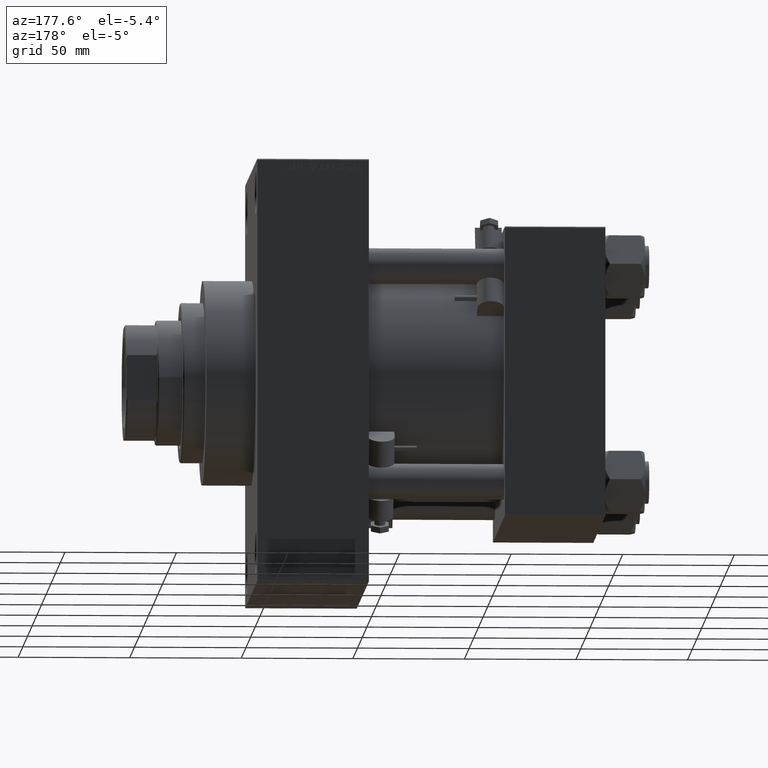
[diagram: clean part render]
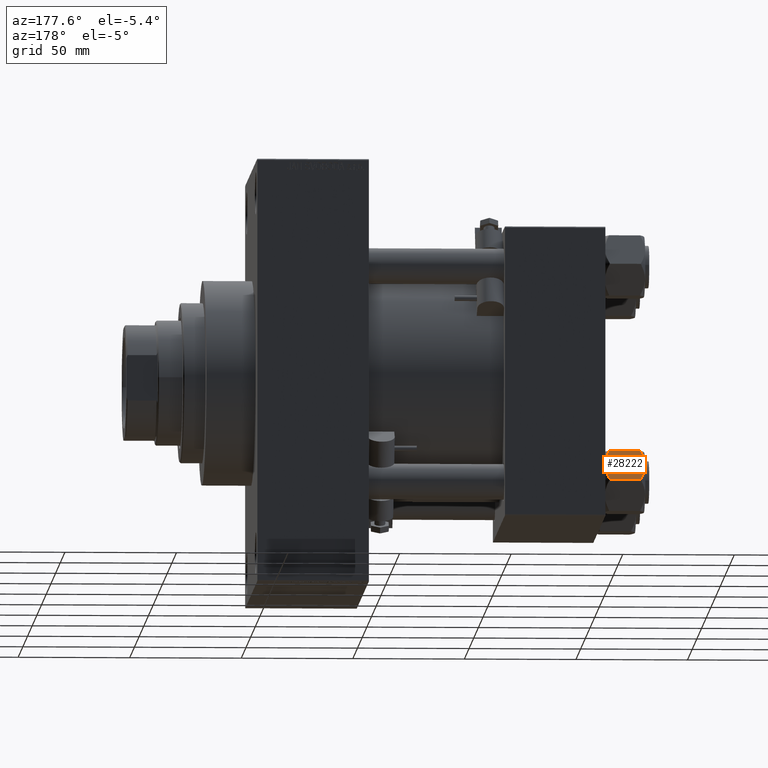
[diagram: same view with one face highlighted and labeled with its STEP entity id]
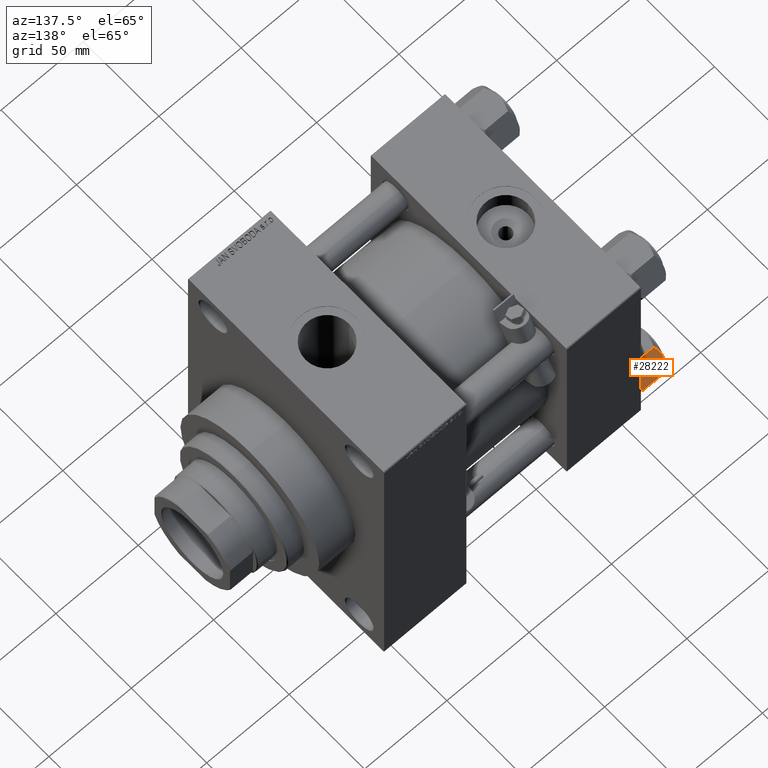
[diagram: same view with one face highlighted and labeled with its STEP entity id]
A machine part, auxiliary view. The second image highlights one B-rep face of the part: STEP entity #28222.
A second angle (auxiliary view) of the same face is appended — the face is thin or edge-on in the first view.
In plain terms, the highlighted planar face has unit normal (0, -0.866, -0.5).
Its self-contained STEP definition (entity closure, byte-faithful):
#175 = CARTESIAN_POINT ( 'NONE',  ( -9.114548888011780647, 11.26777185211904353, -0.9142282604026925608 ) ) ;
#828 = DIRECTION ( 'NONE',  ( 0.4999999999999999445, 0.8660254037844387076, 0.000000000000000000 ) ) ;
#1852 = CARTESIAN_POINT ( 'NONE',  ( -9.124083218049239719, 11.25125790807804194, -17.05261278537718539 ) ) ;
#2490 = ORIENTED_EDGE ( 'NONE', *, *, #4629, .F. ) ;
#3654 = AXIS2_PLACEMENT_3D ( 'NONE', #7027, #26036, #13679 ) ;
#4250 = ORIENTED_EDGE ( 'NONE', *, *, #25191, .F. ) ;
#4436 = VECTOR ( 'NONE', #4820, 999.9999999999998863 ) ;
#4629 = EDGE_CURVE ( 'NONE', #31877, #47916, #45055, .T. ) ;
#4820 = DIRECTION ( 'NONE',  ( 0.4999999999999999445, 0.8660254037844387076, 0.000000000000000000 ) ) ;
#5443 = CARTESIAN_POINT ( 'NONE',  ( -11.71500000000000341, 6.763658403556467746, 0.000000000000000000 ) ) ;
#6049 = CARTESIAN_POINT ( 'NONE',  ( -8.506059550806615022, 12.32170630002230638, -16.56553707812499354 ) ) ;
#6200 = VERTEX_POINT ( 'NONE', #5443 ) ;
#6251 = CARTESIAN_POINT ( 'NONE',  ( -12.38621571200405569, 5.601078687526927169, -17.94910618364698252 ) ) ;
#6509 = EDGE_CURVE ( 'NONE', #31825, #12220, #22741, .T. ) ;
#7013 = CARTESIAN_POINT ( 'NONE',  ( -7.809999999999996945, 13.52731680711293727, -18.00000000000000000 ) ) ;
#7027 = CARTESIAN_POINT ( 'NONE',  ( -15.61999999999999567, 8.023367828467702033E-15, -18.00000000000000000 ) ) ;
#7750 = LINE ( 'NONE', #7013, #19345 ) ;
#8288 = LINE ( 'NONE', #27290, #4436 ) ;
#8378 = EDGE_CURVE ( 'NONE', #21920, #26774, #28307, .T. ) ;
#9669 = CARTESIAN_POINT ( 'NONE',  ( -15.61999999999999567, 8.023367828467702033E-15, -18.00000000000000000 ) ) ;
#10920 = ORIENTED_EDGE ( 'NONE', *, *, #17829, .F. ) ;
#10927 = CARTESIAN_POINT ( 'NONE',  ( -13.02784502466562522, 4.489744118371585380, -0.1971866459924509485 ) ) ;
#10982 = FACE_OUTER_BOUND ( 'NONE', #18474, .T. ) ;
#11678 = CARTESIAN_POINT ( 'NONE',  ( -7.903528262322672582, 13.36532110482643354, -2.000000000000000000 ) ) ;
#11916 = ORIENTED_EDGE ( 'NONE', *, *, #23306, .F. ) ;
#12220 = VERTEX_POINT ( 'NONE', #41062 ) ;
#12952 = CARTESIAN_POINT ( 'NONE',  ( -11.05297796109637787, 7.910314210667880985, -18.00000000000000355 ) ) ;
#13206 = CARTESIAN_POINT ( 'NONE',  ( -15.52647173767732802, 0.1619957022864961793, -2.000000000000000000 ) ) ;
#13679 = DIRECTION ( 'NONE',  ( 0.4999999999999998890, 0.8660254037844385966, 0.000000000000000000 ) ) ;
#13828 = CARTESIAN_POINT ( 'NONE',  ( -15.61999999999999567, 8.023367828467702033E-15, -1.999999999999998224 ) ) ;
#15112 = CARTESIAN_POINT ( 'NONE',  ( -13.99051971937273997, 2.822342635978005276, -0.7317196846281108780 ) ) ;
#15233 = CARTESIAN_POINT ( 'NONE',  ( -10.06459418565412278, 9.622245127110613083, -0.3836066851120565890 ) ) ;
#15950 = EDGE_CURVE ( 'NONE', #19154, #33174, #26516, .T. ) ;
#16090 = VECTOR ( 'NONE', #43370, 999.9999999999998863 ) ;
#17770 = VECTOR ( 'NONE', #28434, 1000.000000000000000 ) ;
#17829 = EDGE_CURVE ( 'NONE', #47916, #6200, #37830, .T. ) ;
#18134 = PLANE ( 'NONE',  #3654 ) ;
#18474 = EDGE_LOOP ( 'NONE', ( #32723, #33733, #39944, #48410, #10920, #2490, #40281, #11916, #19404, #4250 ) ) ;
#19154 = VERTEX_POINT ( 'NONE', #33288 ) ;
#19181 = CARTESIAN_POINT ( 'NONE',  ( -11.04378428799594758, 7.926238119586002995, -0.05089381635301037932 ) ) ;
#19345 = VECTOR ( 'NONE', #22554, 1000.000000000000000 ) ;
#19404 = ORIENTED_EDGE ( 'NONE', *, *, #6509, .F. ) ;
#19429 = CARTESIAN_POINT ( 'NONE',  ( -11.38181071908714515, 7.340759166634869715, 4.331726492258492723E-15 ) ) ;
#19569 = VECTOR ( 'NONE', #43235, 999.9999999999998863 ) ;
#21102 = CARTESIAN_POINT ( 'NONE',  ( -8.202637790192643052, 12.84724820552771263, -16.29368822085855584 ) ) ;
#21145 = CARTESIAN_POINT ( 'NONE',  ( -15.61999999999999567, 8.023367828467702033E-15, -1.999999999999998224 ) ) ;
#21203 = CARTESIAN_POINT ( 'NONE',  ( -15.61999999999999567, 8.023367828467702033E-15, -1.999999999999998224 ) ) ;
#21299 = CARTESIAN_POINT ( 'NONE',  ( -12.04818928091285457, 6.186557640478063114, -18.00000000000000711 ) ) ;
#21920 = VERTEX_POINT ( 'NONE', #13206 ) ;
#22095 = VERTEX_POINT ( 'NONE', #40709 ) ;
#22290 = CARTESIAN_POINT ( 'NONE',  ( -11.71500000000000341, 6.763658403556467746, -18.00000000000000000 ) ) ;
#22554 = DIRECTION ( 'NONE',  ( -0.000000000000000000, -0.000000000000000000, 1.000000000000000000 ) ) ;
#22741 = B_SPLINE_CURVE_WITH_KNOTS ( 'NONE', 3,
 ( #31963, #12952, #39866, #28019, #1852, #6049, #21102, #43331 ),
 .UNSPECIFIED., .F., .F.,
 ( 4, 2, 2, 4 ),
 ( 0.007890825462474436100, 0.01181022244528555365, 0.01376992093669111156, 0.01572961942809666946 ),
 .UNSPECIFIED. ) ;
#23306 = EDGE_CURVE ( 'NONE', #12220, #22095, #8288, .T. ) ;
#25001 = CARTESIAN_POINT ( 'NONE',  ( -15.52647173767732802, 0.1619957022864961793, -16.00000000000000000 ) ) ;
#25191 = EDGE_CURVE ( 'NONE', #33174, #31825, #26777, .T. ) ;
#25475 = CARTESIAN_POINT ( 'NONE',  ( -14.30591678195076177, 2.276058899034892224, -0.9473872146228117241 ) ) ;
#26022 = CARTESIAN_POINT ( 'NONE',  ( -15.61999999999999567, 8.023367828467702033E-15, -16.00000000000000000 ) ) ;
#26036 = DIRECTION ( 'NONE',  ( 0.8660254037844387076, -0.4999999999999999445, 0.000000000000000000 ) ) ;
#26516 = LINE ( 'NONE', #26022, #31675 ) ;
#26774 = VERTEX_POINT ( 'NONE', #21203 ) ;
#26777 = B_SPLINE_CURVE_WITH_KNOTS ( 'NONE', 3,
 ( #25001, #40068, #44756, #36110, #28699, #6251, #21299, #36338 ),
 .UNSPECIFIED., .F., .F.,
 ( 4, 2, 2, 4 ),
 ( 4.472842641907744530E-07, 0.003945636373369311792, 0.005918230917921873946, 0.007890825462474436100 ),
 .UNSPECIFIED. ) ;
#27290 = CARTESIAN_POINT ( 'NONE',  ( -15.61999999999999567, 8.023367828467702033E-15, -16.00000000000000000 ) ) ;
#28019 = CARTESIAN_POINT ( 'NONE',  ( -9.439480280627259745, 10.70497417113493022, -17.26828031537189290 ) ) ;
#28222 = ADVANCED_FACE ( 'NONE', ( #10982 ), #18134, .F. ) ;
#28307 = LINE ( 'NONE', #21145, #16090 ) ;
#28434 = DIRECTION ( 'NONE',  ( -0.000000000000000000, -0.000000000000000000, 1.000000000000000000 ) ) ;
#28699 = CARTESIAN_POINT ( 'NONE',  ( -13.04337073483128329, 4.462852799541079385, -17.75691532989870325 ) ) ;
#30044 = CARTESIAN_POINT ( 'NONE',  ( -7.903528262322672582, 13.36532110482643354, -2.000000000000000000 ) ) ;
#30287 = CARTESIAN_POINT ( 'NONE',  ( -10.38662926516871998, 9.064464007571849891, -0.2430846701012936983 ) ) ;
#31013 = CARTESIAN_POINT ( 'NONE',  ( -11.71500000000000341, 6.763658403556467746, 0.000000000000000000 ) ) ;
#31675 = VECTOR ( 'NONE', #828, 999.9999999999998863 ) ;
#31825 = VERTEX_POINT ( 'NONE', #22290 ) ;
#31877 = VERTEX_POINT ( 'NONE', #45748 ) ;
#31963 = CARTESIAN_POINT ( 'NONE',  ( -11.71500000000000341, 6.763658403556467746, -18.00000000000000000 ) ) ;
#32723 = ORIENTED_EDGE ( 'NONE', *, *, #15950, .F. ) ;
#33174 = VERTEX_POINT ( 'NONE', #37791 ) ;
#33288 = CARTESIAN_POINT ( 'NONE',  ( -15.61999999999999567, 8.023367828467702033E-15, -16.00000000000000000 ) ) ;
#33619 = CARTESIAN_POINT ( 'NONE',  ( -15.52647173767732802, 0.1619957022864961793, -2.000000000000000000 ) ) ;
#33733 = ORIENTED_EDGE ( 'NONE', *, *, #44152, .T. ) ;
#36110 = CARTESIAN_POINT ( 'NONE',  ( -13.36540581434587516, 3.905071680002318857, -17.61639331488794369 ) ) ;
#36338 = CARTESIAN_POINT ( 'NONE',  ( -11.71500000000000341, 6.763658403556467746, -18.00000000000000000 ) ) ;
#36576 = CARTESIAN_POINT ( 'NONE',  ( -12.37702203890362185, 5.617002596445053619, 4.300668617525835570E-15 ) ) ;
#37074 = CARTESIAN_POINT ( 'NONE',  ( -14.92394044919338825, 1.205610507090627781, -1.434462921875002683 ) ) ;
#37791 = CARTESIAN_POINT ( 'NONE',  ( -15.52647173767732802, 0.1619957022864961793, -16.00000000000000000 ) ) ;
#37830 = B_SPLINE_CURVE_WITH_KNOTS ( 'NONE', 3,
 ( #30044, #41409, #175, #15233, #30287, #19181, #19429, #31013 ),
 .UNSPECIFIED., .F., .F.,
 ( 4, 2, 2, 4 ),
 ( 4.472842641835287214E-07, 0.003945636373369305720, 0.005918230917921867007, 0.007890825462474429161 ),
 .UNSPECIFIED. ) ;
#39866 = CARTESIAN_POINT ( 'NONE',  ( -10.40215497533436917, 9.037572688741351001, -17.80281335400754017 ) ) ;
#39944 = ORIENTED_EDGE ( 'NONE', *, *, #8378, .F. ) ;
#40068 = CARTESIAN_POINT ( 'NONE',  ( -14.92760668674625713, 1.199260397376444409, -16.58801072835993295 ) ) ;
#40281 = ORIENTED_EDGE ( 'NONE', *, *, #44017, .F. ) ;
#40709 = CARTESIAN_POINT ( 'NONE',  ( -7.809999999999996945, 13.52731680711293727, -16.00000000000000000 ) ) ;
#41049 = CARTESIAN_POINT ( 'NONE',  ( -15.22736220980736377, 0.6800686015852189792, -1.706311779141444385 ) ) ;
#41062 = CARTESIAN_POINT ( 'NONE',  ( -7.903528262322672582, 13.36532110482643354, -16.00000000000000000 ) ) ;
#41409 = CARTESIAN_POINT ( 'NONE',  ( -8.502393313253749696, 12.32805640973648309, -1.411989271640067933 ) ) ;
#43020 = LINE ( 'NONE', #9669, #17770 ) ;
#43235 = DIRECTION ( 'NONE',  ( -0.4999999999999999445, -0.8660254037844387076, 0.000000000000000000 ) ) ;
#43331 = CARTESIAN_POINT ( 'NONE',  ( -7.903528262322672582, 13.36532110482643354, -16.00000000000000000 ) ) ;
#43370 = DIRECTION ( 'NONE',  ( -0.4999999999999999445, -0.8660254037844387076, 0.000000000000000000 ) ) ;
#44017 = EDGE_CURVE ( 'NONE', #22095, #31877, #7750, .T. ) ;
#44152 = EDGE_CURVE ( 'NONE', #19154, #26774, #43020, .T. ) ;
#44742 = CARTESIAN_POINT ( 'NONE',  ( -11.71500000000000341, 6.763658403556467746, 0.000000000000000000 ) ) ;
#44756 = CARTESIAN_POINT ( 'NONE',  ( -14.31545111198821374, 2.259544954993889299, -17.08577173959730544 ) ) ;
#45055 = LINE ( 'NONE', #13828, #19569 ) ;
#45331 = B_SPLINE_CURVE_WITH_KNOTS ( 'NONE', 3,
 ( #44742, #36576, #10927, #15112, #25475, #37074, #41049, #33619 ),
 .UNSPECIFIED., .F., .F.,
 ( 4, 2, 2, 4 ),
 ( 0.007890825462474429161, 0.01181022244528554845, 0.01376992093669110635, 0.01572961942809666600 ),
 .UNSPECIFIED. ) ;
#45748 = CARTESIAN_POINT ( 'NONE',  ( -7.809999999999996945, 13.52731680711293727, -1.999999999999998224 ) ) ;
#47544 = EDGE_CURVE ( 'NONE', #6200, #21920, #45331, .T. ) ;
#47916 = VERTEX_POINT ( 'NONE', #11678 ) ;
#48410 = ORIENTED_EDGE ( 'NONE', *, *, #47544, .F. ) ;